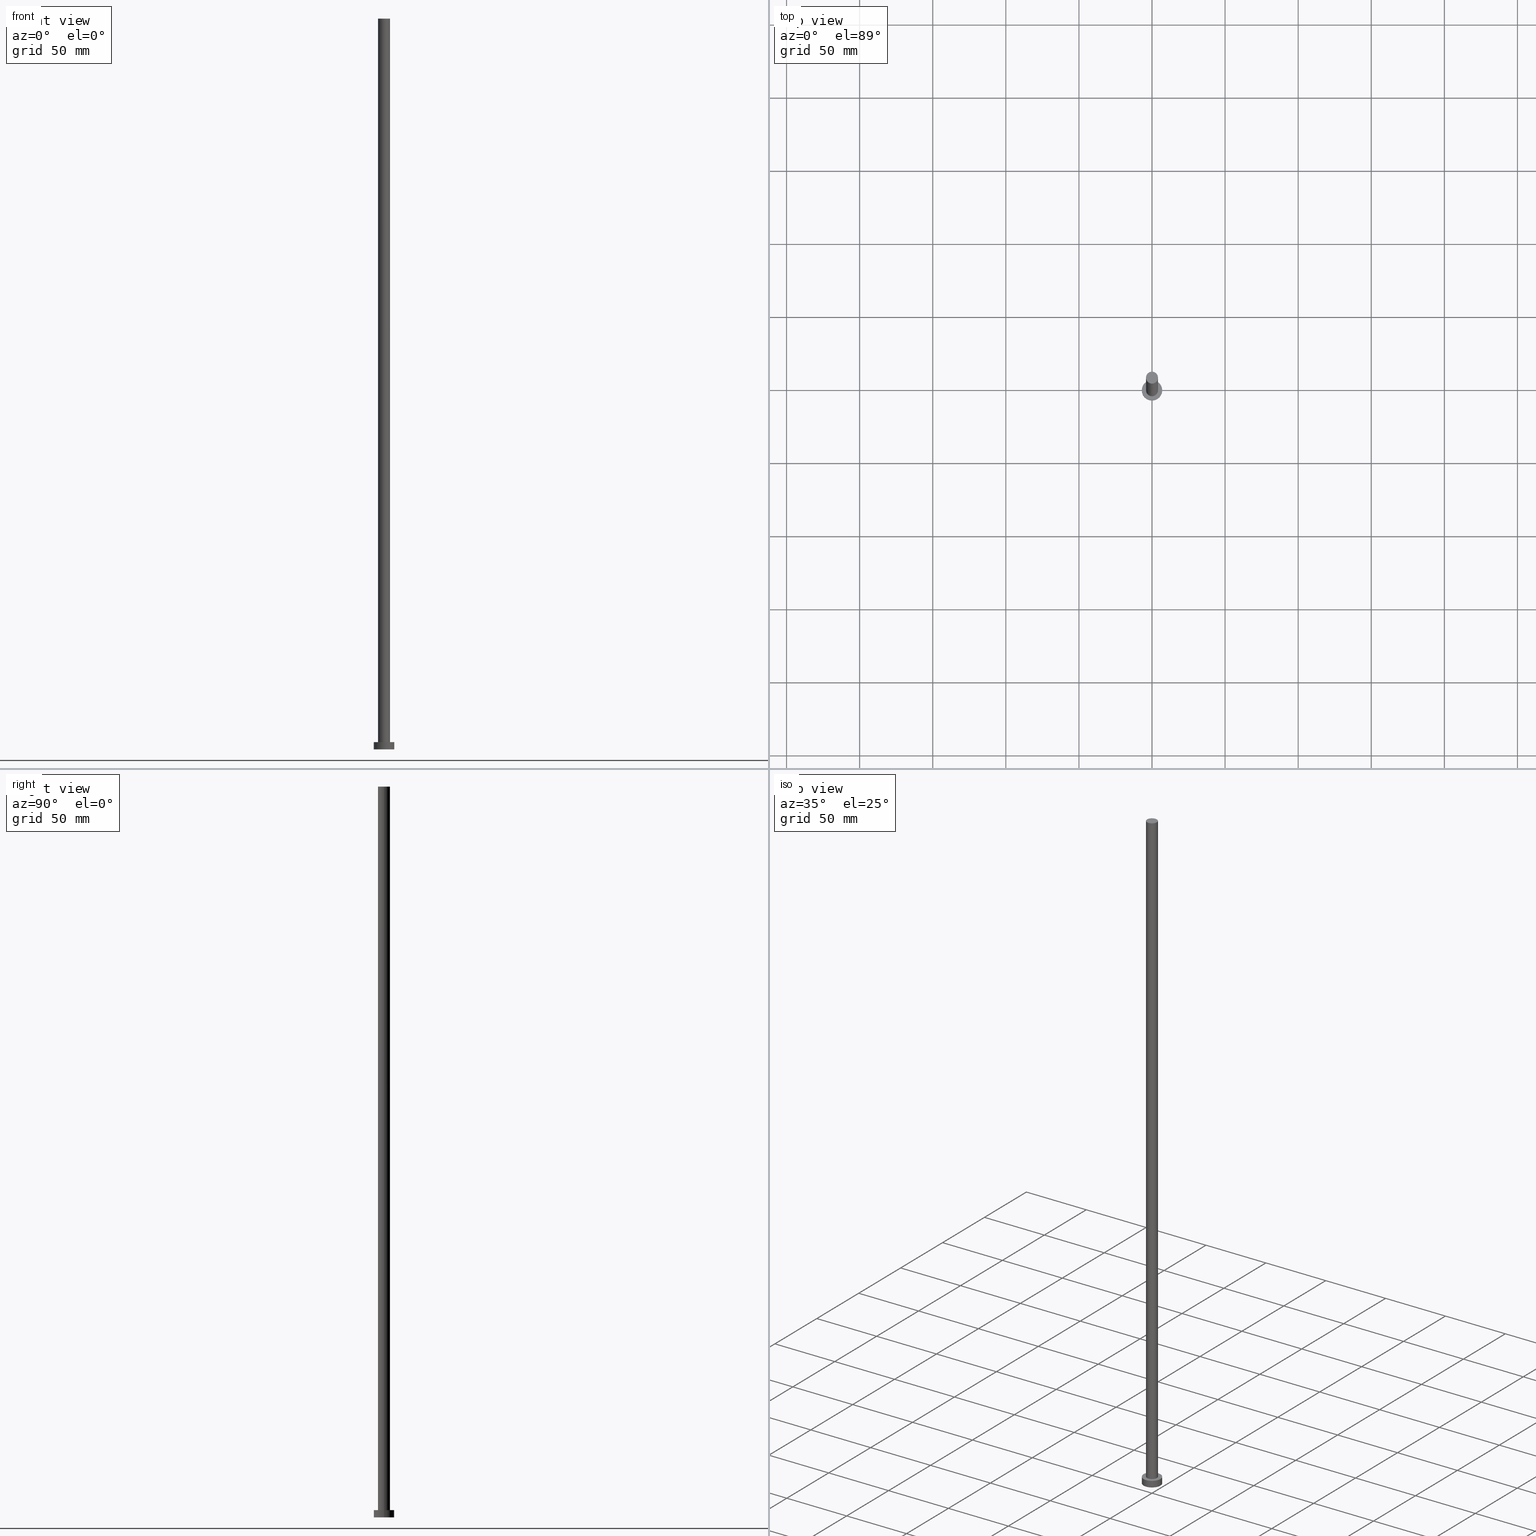
[diagram: canonical four-view strip — front | top / right | iso, engineering-drawing reading convention]
A machine part, canonical four-view strip (front | top / right | iso — engineering-drawing reading convention). The complete STEP part file that produces these views, byte-faithful:
ISO-10303-21;
HEADER;
FILE_DESCRIPTION (( 'STEP AP203' ),
    '1' );
FILE_NAME ('3809.STEP',
    '2023-02-13T10:51:45',
    ( '' ),
    ( '' ),
    'SwSTEP 2.0',
    'SolidWorks 2019',
    '' );
FILE_SCHEMA (( 'CONFIG_CONTROL_DESIGN' ));
ENDSEC;

DATA;
#1 = CARTESIAN_POINT ( 'NONE',  ( 0.000000000000000000, 0.000000000000000000, 0.000000000000000000 ) ) ;
#2 = APPLICATION_CONTEXT ( 'configuration controlled 3d designs of mechanical parts and assemblies' ) ;
#3 = CC_DESIGN_PERSON_AND_ORGANIZATION_ASSIGNMENT ( #183, #244, ( #75 ) ) ;
#4 = EDGE_LOOP ( 'NONE', ( #27, #200, #31, #240 ) ) ;
#5 = CC_DESIGN_APPROVAL ( #64, ( #30 ) ) ;
#6 = CARTESIAN_POINT ( 'NONE',  ( 0.000000000000000000, 0.000000000000000000, 5.000000000000000000 ) ) ;
#7 = ORIENTED_EDGE ( 'NONE', *, *, #45, .T. ) ;
#8 = CALENDAR_DATE ( 2023, 13, 2 ) ;
#9 = CC_DESIGN_PERSON_AND_ORGANIZATION_ASSIGNMENT ( #175, #173, ( #59 ) ) ;
#10 = DIRECTION ( 'NONE',  ( -1.000000000000000000, 0.000000000000000000, 0.000000000000000000 ) ) ;
#11 = DATE_TIME_ROLE ( 'creation_date' ) ;
#12 =( GEOMETRIC_REPRESENTATION_CONTEXT ( 3 ) GLOBAL_UNCERTAINTY_ASSIGNED_CONTEXT ( ( #136 ) ) GLOBAL_UNIT_ASSIGNED_CONTEXT ( ( #17, #82, #177 ) ) REPRESENTATION_CONTEXT ( 'NONE', 'WORKASPACE' ) );
#13 = EDGE_CURVE ( 'NONE', #50, #25, #152, .T. ) ;
#14 = CLOSED_SHELL ( 'NONE', ( #209, #144, #39, #61, #58, #73, #255 ) ) ;
#15 = DIRECTION ( 'NONE',  ( 0.000000000000000000, 0.000000000000000000, 1.000000000000000000 ) ) ;
#16 = FACE_OUTER_BOUND ( 'NONE', #122, .T. ) ;
#17 =( LENGTH_UNIT ( ) NAMED_UNIT ( * ) SI_UNIT ( .MILLI., .METRE. ) );
#18 = APPROVAL_DATE_TIME ( #57, #250 ) ;
#19 = DIRECTION ( 'NONE',  ( 1.000000000000000000, 0.000000000000000000, 0.000000000000000000 ) ) ;
#20 = CARTESIAN_POINT ( 'NONE',  ( 7.000000000000000000, 8.572527594031473190E-16, 5.000000000000000000 ) ) ;
#21 = CARTESIAN_POINT ( 'NONE',  ( -7.000000000000000000, 0.000000000000000000, 0.000000000000000000 ) ) ;
#22 = CARTESIAN_POINT ( 'NONE',  ( 7.000000000000000000, 8.572527594031473190E-16, 5.000000000000000000 ) ) ;
#23 = AXIS2_PLACEMENT_3D ( 'NONE', #47, #53, #88 ) ;
#24 = FACE_OUTER_BOUND ( 'NONE', #72, .T. ) ;
#25 = VERTEX_POINT ( 'NONE', #251 ) ;
#26 = DIRECTION ( 'NONE',  ( 1.000000000000000000, 0.000000000000000000, 0.000000000000000000 ) ) ;
#27 = ORIENTED_EDGE ( 'NONE', *, *, #169, .F. ) ;
#28 = CC_DESIGN_APPROVAL ( #250, ( #59 ) ) ;
#29 = CARTESIAN_POINT ( 'NONE',  ( -4.099999999999999645, 0.000000000000000000, 500.0000000000000000 ) ) ;
#30 = PRODUCT_DEFINITION ( 'NEZN�M�', '', #59, #158 ) ;
#31 = ORIENTED_EDGE ( 'NONE', *, *, #206, .T. ) ;
#32 = DATE_AND_TIME ( #190, #102 ) ;
#33 = CC_DESIGN_PERSON_AND_ORGANIZATION_ASSIGNMENT ( #89, #71, ( #30 ) ) ;
#34 = DIRECTION ( 'NONE',  ( 0.000000000000000000, 0.000000000000000000, 1.000000000000000000 ) ) ;
#35 = ADVANCED_BREP_SHAPE_REPRESENTATION ( '3809', ( #155, #157 ), #12 ) ;
#36 = FACE_BOUND ( 'NONE', #166, .T. ) ;
#37 = DIRECTION ( 'NONE',  ( -0.000000000000000000, -0.000000000000000000, -1.000000000000000000 ) ) ;
#38 = DIRECTION ( 'NONE',  ( 0.000000000000000000, 0.000000000000000000, 1.000000000000000000 ) ) ;
#39 = ADVANCED_FACE ( 'NONE', ( #138 ), #216, .T. ) ;
#40 = PERSON_AND_ORGANIZATION ( #186, #79 ) ;
#41 = AXIS2_PLACEMENT_3D ( 'NONE', #245, #37, #195 ) ;
#42 = DIRECTION ( 'NONE',  ( -0.000000000000000000, -0.000000000000000000, -1.000000000000000000 ) ) ;
#43 = EDGE_CURVE ( 'NONE', #187, #143, #120, .T. ) ;
#44 = CARTESIAN_POINT ( 'NONE',  ( -7.000000000000000000, 0.000000000000000000, 5.000000000000000000 ) ) ;
#45 = EDGE_CURVE ( 'NONE', #180, #241, #65, .T. ) ;
#46 = ORIENTED_EDGE ( 'NONE', *, *, #126, .T. ) ;
#47 = CARTESIAN_POINT ( 'NONE',  ( 0.000000000000000000, 0.000000000000000000, 5.000000000000000000 ) ) ;
#48 = DIRECTION ( 'NONE',  ( 0.000000000000000000, 0.000000000000000000, 1.000000000000000000 ) ) ;
#49 = COORDINATED_UNIVERSAL_TIME_OFFSET ( 1, 0, .AHEAD. ) ;
#50 = VERTEX_POINT ( 'NONE', #172 ) ;
#51 = VECTOR ( 'NONE', #219, 1000.000000000000000 ) ;
#52 = COORDINATED_UNIVERSAL_TIME_OFFSET ( 1, 0, .AHEAD. ) ;
#53 = DIRECTION ( 'NONE',  ( 0.000000000000000000, 0.000000000000000000, 1.000000000000000000 ) ) ;
#54 = APPLICATION_PROTOCOL_DEFINITION ( 'international standard', 'config_control_design', 1994, #191 ) ;
#55 = EDGE_LOOP ( 'NONE', ( #228, #111 ) ) ;
#56 = DIRECTION ( 'NONE',  ( 0.000000000000000000, 0.000000000000000000, 1.000000000000000000 ) ) ;
#57 = DATE_AND_TIME ( #151, #139 ) ;
#58 = ADVANCED_FACE ( 'NONE', ( #78 ), #249, .F. ) ;
#59 = PRODUCT_DEFINITION_FORMATION_WITH_SPECIFIED_SOURCE ( 'LIBOVOLN�', '', #75, .NOT_KNOWN. ) ;
#60 = PERSON_AND_ORGANIZATION_ROLE ( 'classification_officer' ) ;
#61 = ADVANCED_FACE ( 'NONE', ( #36, #16 ), #254, .T. ) ;
#62 = CIRCLE ( 'NONE', #23, 4.099999999999999645 ) ;
#63 = DIRECTION ( 'NONE',  ( 0.000000000000000000, 0.000000000000000000, 1.000000000000000000 ) ) ;
#64 = APPROVAL ( #205, 'NEUR�EN�' ) ;
#65 = CIRCLE ( 'NONE', #211, 7.000000000000000000 ) ;
#66 = APPROVAL_PERSON_ORGANIZATION ( #188, #64, #110 ) ;
#67 = DIRECTION ( 'NONE',  ( -1.000000000000000000, 0.000000000000000000, 0.000000000000000000 ) ) ;
#68 = ORIENTED_EDGE ( 'NONE', *, *, #189, .T. ) ;
#69 = CARTESIAN_POINT ( 'NONE',  ( 7.000000000000000000, 8.572527594031473190E-16, 0.000000000000000000 ) ) ;
#70 = ORIENTED_EDGE ( 'NONE', *, *, #169, .T. ) ;
#71 = PERSON_AND_ORGANIZATION_ROLE ( 'creator' ) ;
#72 = EDGE_LOOP ( 'NONE', ( #86, #46 ) ) ;
#73 = ADVANCED_FACE ( 'NONE', ( #92 ), #243, .T. ) ;
#74 = AXIS2_PLACEMENT_3D ( 'NONE', #174, #63, #252 ) ;
#75 = PRODUCT ( '3809', '3809', '', ( #103 ) ) ;
#76 = DATE_AND_TIME ( #248, #204 ) ;
#77 = PERSON_AND_ORGANIZATION ( #186, #79 ) ;
#78 = FACE_OUTER_BOUND ( 'NONE', #55, .T. ) ;
#79 = ORGANIZATION ( 'NEUR�EN�', 'NEUR�EN�', '' ) ;
#80 = DATE_TIME_ROLE ( 'classification_date' ) ;
#81 = CC_DESIGN_PERSON_AND_ORGANIZATION_ASSIGNMENT ( #40, #100, ( #59 ) ) ;
#82 =( NAMED_UNIT ( * ) PLANE_ANGLE_UNIT ( ) SI_UNIT ( $, .RADIAN. ) );
#83 = DIRECTION ( 'NONE',  ( 1.000000000000000000, 0.000000000000000000, -0.000000000000000000 ) ) ;
#84 = AXIS2_PLACEMENT_3D ( 'NONE', #131, #48, #26 ) ;
#85 = CARTESIAN_POINT ( 'NONE',  ( 0.000000000000000000, 0.000000000000000000, 5.000000000000000000 ) ) ;
#86 = ORIENTED_EDGE ( 'NONE', *, *, #247, .T. ) ;
#87 = AXIS2_PLACEMENT_3D ( 'NONE', #85, #159, #162 ) ;
#88 = DIRECTION ( 'NONE',  ( 1.000000000000000000, 0.000000000000000000, 0.000000000000000000 ) ) ;
#89 = PERSON_AND_ORGANIZATION ( #186, #79 ) ;
#90 = AXIS2_PLACEMENT_3D ( 'NONE', #210, #124, #113 ) ;
#91 = ORIENTED_EDGE ( 'NONE', *, *, #189, .F. ) ;
#92 = FACE_OUTER_BOUND ( 'NONE', #4, .T. ) ;
#93 = EDGE_CURVE ( 'NONE', #25, #50, #62, .T. ) ;
#94 = APPROVAL_STATUS ( 'not_yet_approved' ) ;
#95 = CALENDAR_DATE ( 2023, 13, 2 ) ;
#96 = APPROVAL_PERSON_ORGANIZATION ( #77, #130, #116 ) ;
#97 = PRODUCT_DEFINITION_SHAPE ( 'NONE', 'NONE',  #30 ) ;
#98 = DIRECTION ( 'NONE',  ( 0.000000000000000000, 0.000000000000000000, 1.000000000000000000 ) ) ;
#99 = AXIS2_PLACEMENT_3D ( 'NONE', #156, #176, #230 ) ;
#100 = PERSON_AND_ORGANIZATION_ROLE ( 'design_supplier' ) ;
#101 = CARTESIAN_POINT ( 'NONE',  ( 0.000000000000000000, 0.000000000000000000, 0.000000000000000000 ) ) ;
#102 = LOCAL_TIME ( 11, 51, 45.00000000000000000, #208 ) ;
#103 = MECHANICAL_CONTEXT ( 'NONE', #2, 'mechanical' ) ;
#104 = CC_DESIGN_APPROVAL ( #130, ( #170 ) ) ;
#105 = CARTESIAN_POINT ( 'NONE',  ( 0.000000000000000000, 0.000000000000000000, 500.0000000000000000 ) ) ;
#106 = ORIENTED_EDGE ( 'NONE', *, *, #126, .F. ) ;
#107 = CC_DESIGN_PERSON_AND_ORGANIZATION_ASSIGNMENT ( #253, #60, ( #170 ) ) ;
#108 = FACE_OUTER_BOUND ( 'NONE', #227, .T. ) ;
#109 = CIRCLE ( 'NONE', #74, 4.099999999999999645 ) ;
#110 = APPROVAL_ROLE ( '' ) ;
#111 = ORIENTED_EDGE ( 'NONE', *, *, #112, .F. ) ;
#112 = EDGE_CURVE ( 'NONE', #143, #187, #198, .T. ) ;
#113 = DIRECTION ( 'NONE',  ( 1.000000000000000000, 0.000000000000000000, 0.000000000000000000 ) ) ;
#114 = DIRECTION ( 'NONE',  ( 1.000000000000000000, 0.000000000000000000, 0.000000000000000000 ) ) ;
#115 = CARTESIAN_POINT ( 'NONE',  ( 4.099999999999999645, 5.021051876504147385E-16, 500.0000000000000000 ) ) ;
#116 = APPROVAL_ROLE ( '' ) ;
#117 = LINE ( 'NONE', #44, #231 ) ;
#118 = LINE ( 'NONE', #217, #165 ) ;
#119 = DIRECTION ( 'NONE',  ( -0.000000000000000000, -0.000000000000000000, -1.000000000000000000 ) ) ;
#120 = CIRCLE ( 'NONE', #128, 7.000000000000000000 ) ;
#121 = SHAPE_DEFINITION_REPRESENTATION ( #97, #35 ) ;
#122 = EDGE_LOOP ( 'NONE', ( #7, #68 ) ) ;
#123 = APPROVAL_DATE_TIME ( #246, #130 ) ;
#124 = DIRECTION ( 'NONE',  ( 0.000000000000000000, 0.000000000000000000, 1.000000000000000000 ) ) ;
#125 = ORIENTED_EDGE ( 'NONE', *, *, #93, .F. ) ;
#126 = EDGE_CURVE ( 'NONE', #150, #168, #194, .T. ) ;
#127 = CIRCLE ( 'NONE', #87, 7.000000000000000000 ) ;
#128 = AXIS2_PLACEMENT_3D ( 'NONE', #101, #15, #154 ) ;
#129 = LINE ( 'NONE', #115, #51 ) ;
#130 = APPROVAL ( #218, 'NEUR�EN�' ) ;
#131 = CARTESIAN_POINT ( 'NONE',  ( 0.000000000000000000, 0.000000000000000000, 500.0000000000000000 ) ) ;
#132 = CARTESIAN_POINT ( 'NONE',  ( 0.000000000000000000, 0.000000000000000000, 500.0000000000000000 ) ) ;
#133 = AXIS2_PLACEMENT_3D ( 'NONE', #105, #38, #83 ) ;
#134 = PERSON_AND_ORGANIZATION ( #186, #79 ) ;
#135 = AXIS2_PLACEMENT_3D ( 'NONE', #132, #201, #10 ) ;
#136 = UNCERTAINTY_MEASURE_WITH_UNIT (LENGTH_MEASURE( 1.000000000000000082E-05 ), #17, 'distance_accuracy_value', 'NONE');
#137 = DIRECTION ( 'NONE',  ( -0.000000000000000000, -0.000000000000000000, -1.000000000000000000 ) ) ;
#138 = FACE_OUTER_BOUND ( 'NONE', #202, .T. ) ;
#139 = LOCAL_TIME ( 11, 51, 45.00000000000000000, #49 ) ;
#140 = APPLICATION_PROTOCOL_DEFINITION ( 'international standard', 'config_control_design', 1994, #2 ) ;
#141 = CARTESIAN_POINT ( 'NONE',  ( 0.000000000000000000, 0.000000000000000000, 500.0000000000000000 ) ) ;
#142 = AXIS2_PLACEMENT_3D ( 'NONE', #141, #42, #222 ) ;
#143 = VERTEX_POINT ( 'NONE', #69 ) ;
#144 = ADVANCED_FACE ( 'NONE', ( #108 ), #238, .T. ) ;
#145 = DATE_AND_TIME ( #8, #212 ) ;
#146 = ORIENTED_EDGE ( 'NONE', *, *, #13, .T. ) ;
#147 = CARTESIAN_POINT ( 'NONE',  ( 0.000000000000000000, 0.000000000000000000, 5.000000000000000000 ) ) ;
#148 = AXIS2_PLACEMENT_3D ( 'NONE', #6, #56, #184 ) ;
#149 = AXIS2_PLACEMENT_3D ( 'NONE', #147, #226, #67 ) ;
#150 = VERTEX_POINT ( 'NONE', #203 ) ;
#151 = CALENDAR_DATE ( 2023, 13, 2 ) ;
#152 = CIRCLE ( 'NONE', #161, 4.099999999999999645 ) ;
#153 = COORDINATED_UNIVERSAL_TIME_OFFSET ( 1, 0, .AHEAD. ) ;
#154 = DIRECTION ( 'NONE',  ( 1.000000000000000000, 0.000000000000000000, 0.000000000000000000 ) ) ;
#155 = MANIFOLD_SOLID_BREP ( 'P�idat vysunut�m3', #14 ) ;
#156 = CARTESIAN_POINT ( 'NONE',  ( 0.000000000000000000, 0.000000000000000000, 0.000000000000000000 ) ) ;
#157 = AXIS2_PLACEMENT_3D ( 'NONE', #1, #160, #234 ) ;
#158 = DESIGN_CONTEXT ( 'detailed design', #191, 'design' ) ;
#159 = DIRECTION ( 'NONE',  ( 0.000000000000000000, 0.000000000000000000, 1.000000000000000000 ) ) ;
#160 = DIRECTION ( 'NONE',  ( 0.000000000000000000, 0.000000000000000000, 1.000000000000000000 ) ) ;
#161 = AXIS2_PLACEMENT_3D ( 'NONE', #192, #34, #114 ) ;
#162 = DIRECTION ( 'NONE',  ( 1.000000000000000000, 0.000000000000000000, 0.000000000000000000 ) ) ;
#163 = CC_DESIGN_DATE_AND_TIME_ASSIGNMENT ( #76, #80, ( #170 ) ) ;
#164 = ORIENTED_EDGE ( 'NONE', *, *, #206, .F. ) ;
#165 = VECTOR ( 'NONE', #137, 1000.000000000000000 ) ;
#166 = EDGE_LOOP ( 'NONE', ( #125, #224 ) ) ;
#167 = ORIENTED_EDGE ( 'NONE', *, *, #220, .T. ) ;
#168 = VERTEX_POINT ( 'NONE', #29 ) ;
#169 = EDGE_CURVE ( 'NONE', #150, #50, #129, .T. ) ;
#170 = SECURITY_CLASSIFICATION ( '', '', #229 ) ;
#171 = COORDINATED_UNIVERSAL_TIME_OFFSET ( 1, 0, .AHEAD. ) ;
#172 = CARTESIAN_POINT ( 'NONE',  ( 4.099999999999999645, 5.021051876504147385E-16, 5.000000000000000000 ) ) ;
#173 = PERSON_AND_ORGANIZATION_ROLE ( 'creator' ) ;
#174 = CARTESIAN_POINT ( 'NONE',  ( 0.000000000000000000, 0.000000000000000000, 500.0000000000000000 ) ) ;
#175 = PERSON_AND_ORGANIZATION ( #186, #79 ) ;
#176 = DIRECTION ( 'NONE',  ( 0.000000000000000000, 0.000000000000000000, 1.000000000000000000 ) ) ;
#177 =( NAMED_UNIT ( * ) SI_UNIT ( $, .STERADIAN. ) SOLID_ANGLE_UNIT ( ) );
#178 = VECTOR ( 'NONE', #119, 1000.000000000000000 ) ;
#179 = ORIENTED_EDGE ( 'NONE', *, *, #239, .F. ) ;
#180 = VERTEX_POINT ( 'NONE', #236 ) ;
#181 = APPROVAL_PERSON_ORGANIZATION ( #134, #250, #225 ) ;
#182 = ORIENTED_EDGE ( 'NONE', *, *, #239, .T. ) ;
#183 = PERSON_AND_ORGANIZATION ( #186, #79 ) ;
#184 = DIRECTION ( 'NONE',  ( 1.000000000000000000, 0.000000000000000000, -0.000000000000000000 ) ) ;
#185 = APPROVAL_DATE_TIME ( #145, #64 ) ;
#186 = PERSON ( 'NEUR�EN�', 'NEUR�EN�', 'NEUR�EN�', ('NEUR�EN�'), ('NEUR�EN�'), ('NEUR�EN�') ) ;
#187 = VERTEX_POINT ( 'NONE', #21 ) ;
#188 = PERSON_AND_ORGANIZATION ( #186, #79 ) ;
#189 = EDGE_CURVE ( 'NONE', #241, #180, #127, .T. ) ;
#190 = CALENDAR_DATE ( 2023, 13, 2 ) ;
#191 = APPLICATION_CONTEXT ( 'configuration controlled 3d designs of mechanical parts and assemblies' ) ;
#192 = CARTESIAN_POINT ( 'NONE',  ( 0.000000000000000000, 0.000000000000000000, 5.000000000000000000 ) ) ;
#193 = CC_DESIGN_SECURITY_CLASSIFICATION ( #170, ( #59 ) ) ;
#194 = CIRCLE ( 'NONE', #84, 4.099999999999999645 ) ;
#195 = DIRECTION ( 'NONE',  ( -1.000000000000000000, 0.000000000000000000, 0.000000000000000000 ) ) ;
#196 = FACE_OUTER_BOUND ( 'NONE', #223, .T. ) ;
#197 = DIRECTION ( 'NONE',  ( -0.000000000000000000, -0.000000000000000000, -1.000000000000000000 ) ) ;
#198 = CIRCLE ( 'NONE', #90, 7.000000000000000000 ) ;
#199 = PRODUCT_RELATED_PRODUCT_CATEGORY ( 'detail', '', ( #75 ) ) ;
#200 = ORIENTED_EDGE ( 'NONE', *, *, #247, .F. ) ;
#201 = DIRECTION ( 'NONE',  ( -0.000000000000000000, -0.000000000000000000, -1.000000000000000000 ) ) ;
#202 = EDGE_LOOP ( 'NONE', ( #213, #237, #182, #242 ) ) ;
#203 = CARTESIAN_POINT ( 'NONE',  ( 4.099999999999999645, 5.021051876504147385E-16, 500.0000000000000000 ) ) ;
#204 = LOCAL_TIME ( 11, 51, 45.00000000000000000, #153 ) ;
#205 = APPROVAL_STATUS ( 'not_yet_approved' ) ;
#206 = EDGE_CURVE ( 'NONE', #168, #25, #118, .T. ) ;
#207 = ORIENTED_EDGE ( 'NONE', *, *, #112, .T. ) ;
#208 = COORDINATED_UNIVERSAL_TIME_OFFSET ( 1, 0, .AHEAD. ) ;
#209 = ADVANCED_FACE ( 'NONE', ( #196 ), #233, .T. ) ;
#210 = CARTESIAN_POINT ( 'NONE',  ( 0.000000000000000000, 0.000000000000000000, 0.000000000000000000 ) ) ;
#211 = AXIS2_PLACEMENT_3D ( 'NONE', #214, #98, #19 ) ;
#212 = LOCAL_TIME ( 11, 51, 45.00000000000000000, #52 ) ;
#213 = ORIENTED_EDGE ( 'NONE', *, *, #220, .F. ) ;
#214 = CARTESIAN_POINT ( 'NONE',  ( 0.000000000000000000, 0.000000000000000000, 5.000000000000000000 ) ) ;
#215 = LINE ( 'NONE', #22, #178 ) ;
#216 = CYLINDRICAL_SURFACE ( 'NONE', #41, 7.000000000000000000 ) ;
#217 = CARTESIAN_POINT ( 'NONE',  ( -4.099999999999999645, 0.000000000000000000, 500.0000000000000000 ) ) ;
#218 = APPROVAL_STATUS ( 'not_yet_approved' ) ;
#219 = DIRECTION ( 'NONE',  ( -0.000000000000000000, -0.000000000000000000, -1.000000000000000000 ) ) ;
#220 = EDGE_CURVE ( 'NONE', #241, #143, #215, .T. ) ;
#221 = PLANE ( 'NONE',  #133 ) ;
#222 = DIRECTION ( 'NONE',  ( -1.000000000000000000, 0.000000000000000000, 0.000000000000000000 ) ) ;
#223 = EDGE_LOOP ( 'NONE', ( #106, #70, #146, #164 ) ) ;
#224 = ORIENTED_EDGE ( 'NONE', *, *, #13, .F. ) ;
#225 = APPROVAL_ROLE ( '' ) ;
#226 = DIRECTION ( 'NONE',  ( -0.000000000000000000, -0.000000000000000000, -1.000000000000000000 ) ) ;
#227 = EDGE_LOOP ( 'NONE', ( #91, #167, #207, #179 ) ) ;
#228 = ORIENTED_EDGE ( 'NONE', *, *, #43, .F. ) ;
#229 = SECURITY_CLASSIFICATION_LEVEL ( 'unclassified' ) ;
#230 = DIRECTION ( 'NONE',  ( 1.000000000000000000, 0.000000000000000000, -0.000000000000000000 ) ) ;
#231 = VECTOR ( 'NONE', #197, 1000.000000000000000 ) ;
#232 = CC_DESIGN_DATE_AND_TIME_ASSIGNMENT ( #32, #11, ( #30 ) ) ;
#233 = CYLINDRICAL_SURFACE ( 'NONE', #142, 4.099999999999999645 ) ;
#234 = DIRECTION ( 'NONE',  ( 1.000000000000000000, 0.000000000000000000, 0.000000000000000000 ) ) ;
#235 = LOCAL_TIME ( 11, 51, 45.00000000000000000, #171 ) ;
#236 = CARTESIAN_POINT ( 'NONE',  ( -7.000000000000000000, 0.000000000000000000, 5.000000000000000000 ) ) ;
#237 = ORIENTED_EDGE ( 'NONE', *, *, #45, .F. ) ;
#238 = CYLINDRICAL_SURFACE ( 'NONE', #149, 7.000000000000000000 ) ;
#239 = EDGE_CURVE ( 'NONE', #180, #187, #117, .T. ) ;
#240 = ORIENTED_EDGE ( 'NONE', *, *, #93, .T. ) ;
#241 = VERTEX_POINT ( 'NONE', #20 ) ;
#242 = ORIENTED_EDGE ( 'NONE', *, *, #43, .T. ) ;
#243 = CYLINDRICAL_SURFACE ( 'NONE', #135, 4.099999999999999645 ) ;
#244 = PERSON_AND_ORGANIZATION_ROLE ( 'design_owner' ) ;
#245 = CARTESIAN_POINT ( 'NONE',  ( 0.000000000000000000, 0.000000000000000000, 5.000000000000000000 ) ) ;
#246 = DATE_AND_TIME ( #95, #235 ) ;
#247 = EDGE_CURVE ( 'NONE', #168, #150, #109, .T. ) ;
#248 = CALENDAR_DATE ( 2023, 13, 2 ) ;
#249 = PLANE ( 'NONE',  #99 ) ;
#250 = APPROVAL ( #94, 'NEUR�EN�' ) ;
#251 = CARTESIAN_POINT ( 'NONE',  ( -4.099999999999999645, 0.000000000000000000, 5.000000000000000000 ) ) ;
#252 = DIRECTION ( 'NONE',  ( 1.000000000000000000, 0.000000000000000000, 0.000000000000000000 ) ) ;
#253 = PERSON_AND_ORGANIZATION ( #186, #79 ) ;
#254 = PLANE ( 'NONE',  #148 ) ;
#255 = ADVANCED_FACE ( 'NONE', ( #24 ), #221, .T. ) ;
ENDSEC;
END-ISO-10303-21;
